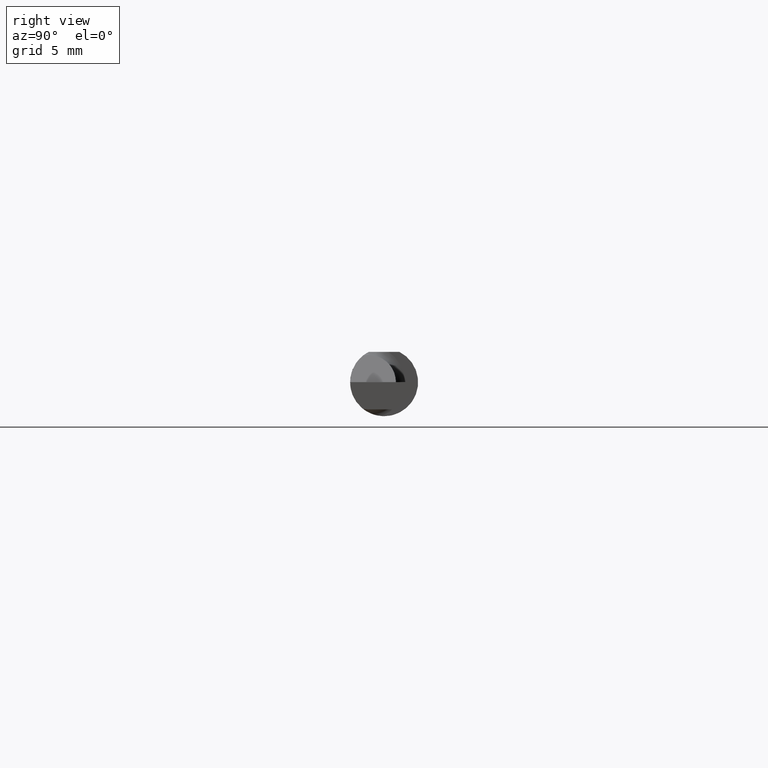
[diagram: clean part render]
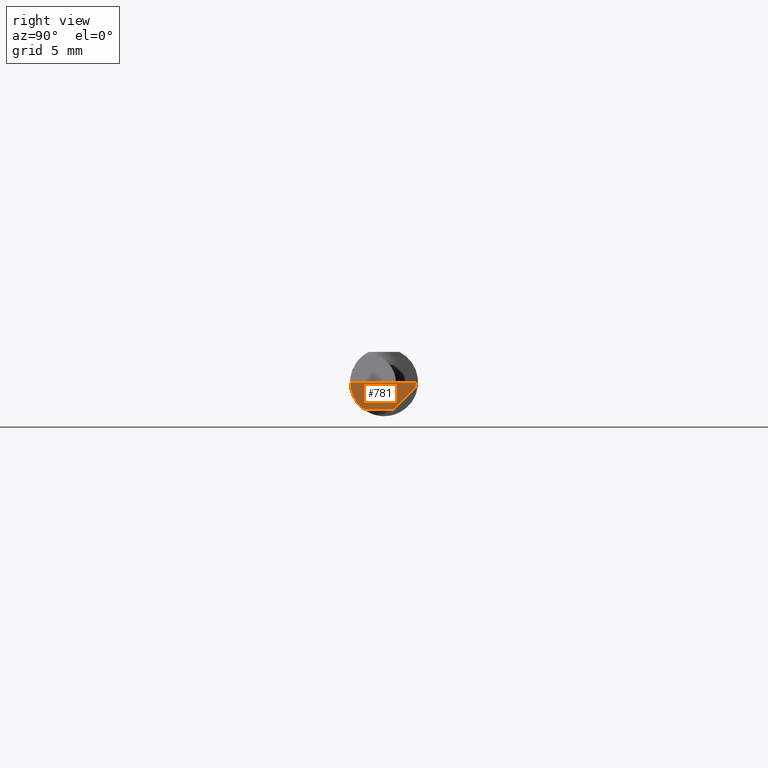
[diagram: same view with one face highlighted and labeled with its STEP entity id]
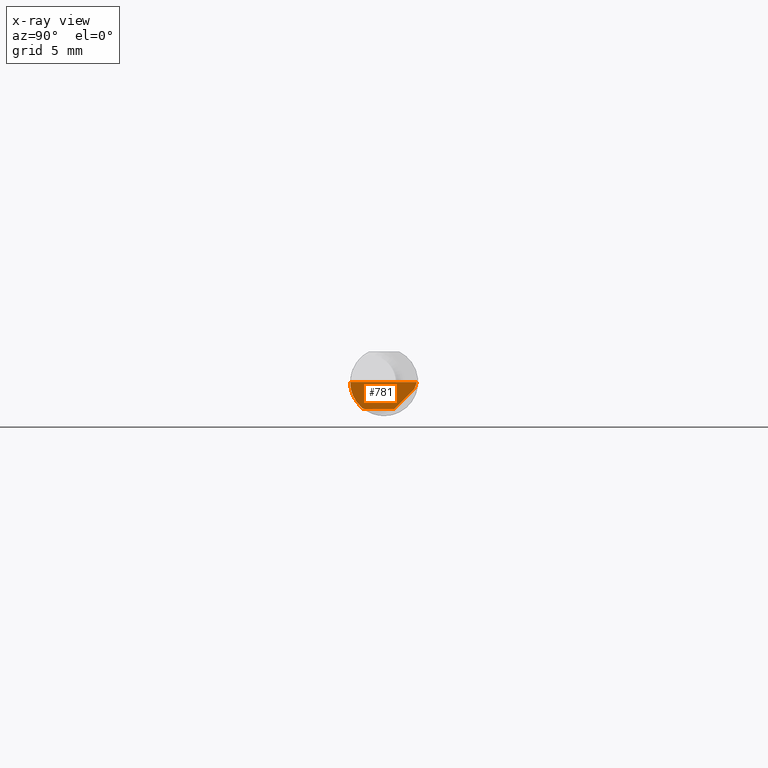
[diagram: x-ray of the same camera — body ghosted, the highlighted face saturated]
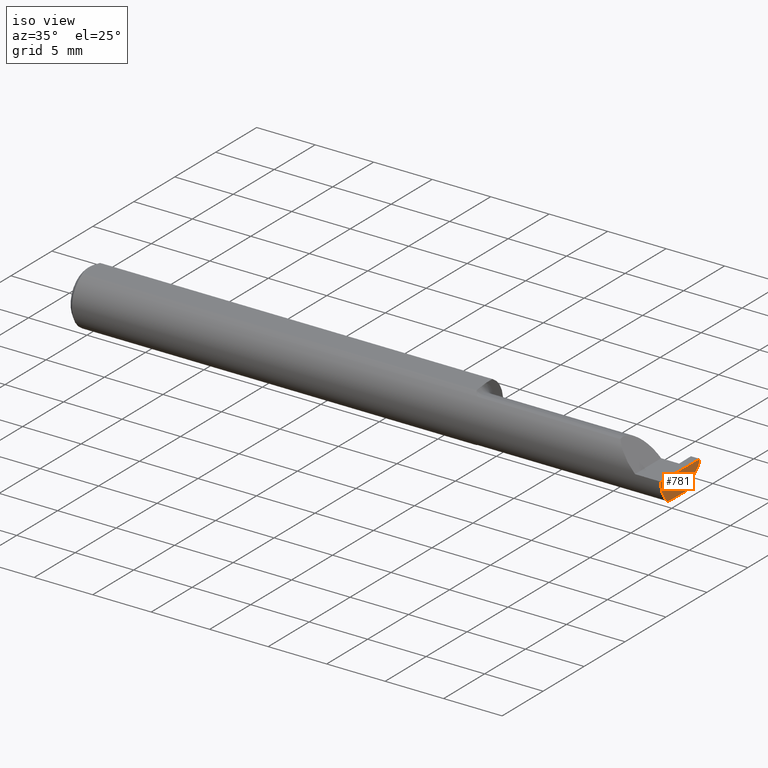
[diagram: same view with one face highlighted and labeled with its STEP entity id]
A machine part, right view. The second image highlights one B-rep face of the part: STEP entity #781.
The next image is the same camera in x-ray: the body ghosted, the highlighted face saturated — about 0% of this face is hidden behind the body in this view.
A second angle (iso view) of the same face is appended — the face is thin or edge-on in the first view.
In plain terms, the highlighted planar face has unit normal (-0.9995, 0.0174, 0.0262).
Its self-contained STEP definition (entity closure, byte-faithful):
#2 = EDGE_CURVE ( 'NONE', #194, #638, #14, .T. ) ;
#13 = LINE ( 'NONE', #15, #434 ) ;
#14 = LINE ( 'NONE', #609, #146 ) ;
#15 = CARTESIAN_POINT ( 'NONE',  ( 1.999906583493247902, 0.08935513411407894346, -0.002870745427926570548 ) ) ;
#25 = CARTESIAN_POINT ( 'NONE',  ( 1.996937940439960757, 0.02748456554894194992, -0.07499999999999998335 ) ) ;
#26 = EDGE_CURVE ( 'NONE', #243, #507, #665, .T. ) ;
#30 = CARTESIAN_POINT ( 'NONE',  ( 1.995561922431088098, -0.08091355869144019330, -0.05531953381055033925 ) ) ;
#34 = CARTESIAN_POINT ( 'NONE',  ( 1.996026586675631709, -0.09358669535931163352, -0.02913391928411206838 ) ) ;
#65 = CARTESIAN_POINT ( 'NONE',  ( 1.996678706298551820, -0.09994204647866641866, 4.067411700506801675E-19 ) ) ;
#66 = ORIENTED_EDGE ( 'NONE', *, *, #2, .F. ) ;
#72 = VECTOR ( 'NONE', #661, 39.37007874015748854 ) ;
#82 = ORIENTED_EDGE ( 'NONE', *, *, #161, .F. ) ;
#85 = DIRECTION ( 'NONE',  ( -0.01744642479411312799, -0.9998477995484629233, 3.463134274570152404E-16 ) ) ;
#88 = VECTOR ( 'NONE', #717, 39.37007874015748854 ) ;
#120 = CARTESIAN_POINT ( 'NONE',  ( 1.995715029210241465, -0.04259999999999997816, -0.07499999999999998335 ) ) ;
#129 = CARTESIAN_POINT ( 'NONE',  ( 1.999381723781206599, 0.08348456554894213844, -0.01900000000000000300 ) ) ;
#137 = DIRECTION ( 'NONE',  ( -0.03056411404777942264, -0.3418603543644915255, -0.9392536042231929283 ) ) ;
#139 = ORIENTED_EDGE ( 'NONE', *, *, #26, .F. ) ;
#146 = VECTOR ( 'NONE', #85, 39.37007874015748854 ) ;
#161 = EDGE_CURVE ( 'NONE', #240, #243, #652, .T. ) ;
#184 = CARTESIAN_POINT ( 'NONE',  ( 1.996789369178486595, -0.09359999999634724399, 1.727064904157919157E-17 ) ) ;
#194 = VERTEX_POINT ( 'NONE', #25 ) ;
#198 = CARTESIAN_POINT ( 'NONE',  ( 1.995624014772495736, -0.04781600192481529760, -0.07499999999999999722 ) ) ;
#203 = EDGE_CURVE ( 'NONE', #689, #194, #438, .T. ) ;
#229 = ORIENTED_EDGE ( 'NONE', *, *, #203, .F. ) ;
#240 = VERTEX_POINT ( 'NONE', #565 ) ;
#243 = VERTEX_POINT ( 'NONE', #399 ) ;
#287 = CARTESIAN_POINT ( 'NONE',  ( 1.996788249052547481, -0.09359999022555406945, -4.277588313357508156E-05 ) ) ;
#291 = ORIENTED_EDGE ( 'NONE', *, *, #682, .F. ) ;
#307 = LINE ( 'NONE', #65, #88 ) ;
#312 = DIRECTION ( 'NONE',  ( -0.9995051766793262571, 0.01744044634007060196, 0.02617694830739122208 ) ) ;
#322 = CARTESIAN_POINT ( 'NONE',  ( 1.994172072281005459, -0.09355431490906530867, -0.09996576130738767108 ) ) ;
#341 =( BOUNDED_CURVE ( )  B_SPLINE_CURVE ( 3, ( #382, #732, #198, #491 ),
 .UNSPECIFIED., .F., .F. ) 
 B_SPLINE_CURVE_WITH_KNOTS ( ( 4, 4 ),
 ( 0.3794527164476041992, 0.5877155292608622350 ),
 .UNSPECIFIED. ) 
 CURVE ( )  GEOMETRIC_REPRESENTATION_ITEM ( )  RATIONAL_B_SPLINE_CURVE ( ( 1.000000000000000000, 0.9963888149483995926, 0.9963888149483995926, 1.000000000000000000 ) ) 
 REPRESENTATION_ITEM ( '' )  );
#369 = CARTESIAN_POINT ( 'NONE',  ( 2.000000000000000444, 0.09040000000000000813, -4.722041942173579765E-17 ) ) ;
#376 = FACE_OUTER_BOUND ( 'NONE', #750, .T. ) ;
#382 = CARTESIAN_POINT ( 'NONE',  ( 1.995486889784650497, -0.05810704225352112534, -0.07337936794867826185 ) ) ;
#399 = CARTESIAN_POINT ( 'NONE',  ( 1.996788249052547481, -0.09359999022555406945, -4.277588313357508156E-05 ) ) ;
#403 = DIRECTION ( 'NONE',  ( -0.03084274406794414863, -0.7067703747110382073, -0.7067703747110356538 ) ) ;
#434 = VECTOR ( 'NONE', #137, 39.37007874015748854 ) ;
#438 = LINE ( 'NONE', #688, #648 ) ;
#440 = PLANE ( 'NONE',  #678 ) ;
#491 = CARTESIAN_POINT ( 'NONE',  ( 1.995715029210241465, -0.04259999999999997816, -0.07499999999999998335 ) ) ;
#507 = VERTEX_POINT ( 'NONE', #184 ) ;
#539 = VERTEX_POINT ( 'NONE', #369 ) ;
#565 = CARTESIAN_POINT ( 'NONE',  ( 1.995486889784650497, -0.05810704225352112534, -0.07337936794867826185 ) ) ;
#583 = EDGE_CURVE ( 'NONE', #507, #539, #307, .T. ) ;
#605 = CARTESIAN_POINT ( 'NONE',  ( 1.997382703856816377, 0.09044568507411565594, -0.09996573249755573431 ) ) ;
#609 = CARTESIAN_POINT ( 'NONE',  ( 1.997436282896842386, 0.05604437736224970185, -0.07500000000000002498 ) ) ;
#613 = DIRECTION ( 'NONE',  ( 0.02618093032612054533, 0.000000000000000000, 0.9996572206948034500 ) ) ;
#618 = CARTESIAN_POINT ( 'NONE',  ( 1.995486889784650497, -0.05810704225352112534, -0.07337936794867826185 ) ) ;
#619 = ORIENTED_EDGE ( 'NONE', *, *, #583, .F. ) ;
#638 = VERTEX_POINT ( 'NONE', #120 ) ;
#648 = VECTOR ( 'NONE', #403, 39.37007874015748854 ) ;
#652 =( BOUNDED_CURVE ( )  B_SPLINE_CURVE ( 3, ( #618, #30, #34, #287 ),
 .UNSPECIFIED., .F., .F. ) 
 B_SPLINE_CURVE_WITH_KNOTS ( ( 4, 4 ),
 ( 0.08204942185700578317, 0.9826237902196912621 ),
 .UNSPECIFIED. ) 
 CURVE ( )  GEOMETRIC_REPRESENTATION_ITEM ( )  RATIONAL_B_SPLINE_CURVE ( ( 1.000000000000000000, 0.9335481000009943076, 0.9335481000009943076, 1.000000000000000000 ) ) 
 REPRESENTATION_ITEM ( '' )  );
#661 = DIRECTION ( 'NONE',  ( 0.02617296143184116158, -0.0004568507411563392279, 0.9996573249755575929 ) ) ;
#665 = LINE ( 'NONE', #322, #72 ) ;
#678 = AXIS2_PLACEMENT_3D ( 'NONE', #605, #312, #613 ) ;
#682 = EDGE_CURVE ( 'NONE', #539, #689, #13, .T. ) ;
#688 = CARTESIAN_POINT ( 'NONE',  ( 1.999287184445666998, 0.08131816941191072345, -0.02116639613703141104 ) ) ;
#689 = VERTEX_POINT ( 'NONE', #129 ) ;
#690 = EDGE_CURVE ( 'NONE', #240, #638, #341, .T. ) ;
#717 = DIRECTION ( 'NONE',  ( 0.01744642479411313840, 0.9998477995484629233, -2.135106780035502721E-18 ) ) ;
#732 = CARTESIAN_POINT ( 'NONE',  ( 1.995547692684114249, -0.05300374992736063551, -0.07445783144524571739 ) ) ;
#737 = ORIENTED_EDGE ( 'NONE', *, *, #690, .T. ) ;
#750 = EDGE_LOOP ( 'NONE', ( #737, #66, #229, #291, #619, #139, #82 ) ) ;
#781 = ADVANCED_FACE ( 'NONE', ( #376 ), #440, .F. ) ;